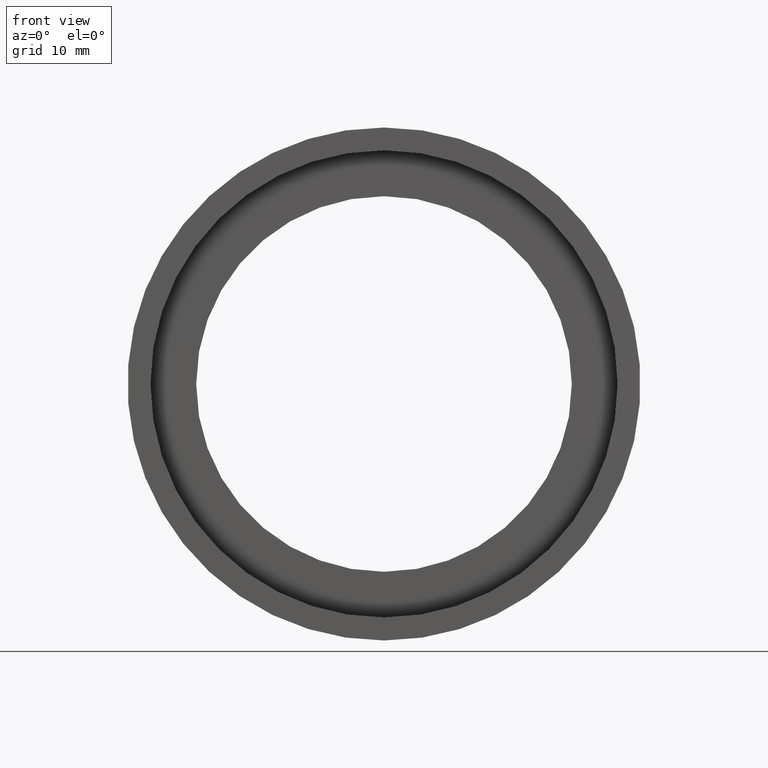
[diagram: clean part render]
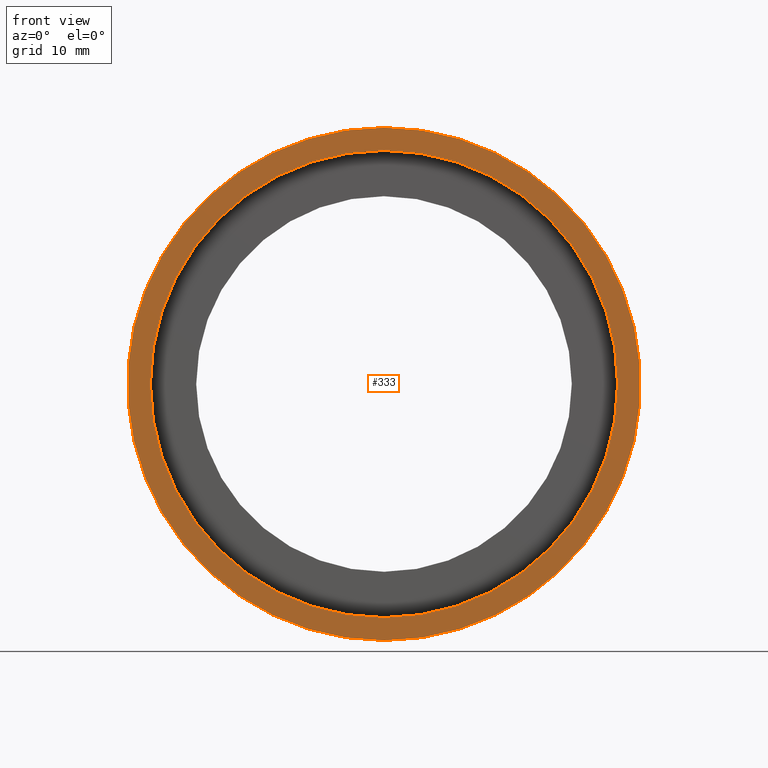
[diagram: same view with one face highlighted and labeled with its STEP entity id]
A machine part, front view. The second image highlights one B-rep face of the part: STEP entity #333.
In plain terms, the highlighted planar face has unit normal (-0, 1, 0).
Its self-contained STEP definition (entity closure, byte-faithful):
#6 = CARTESIAN_POINT ( 'NONE',  ( 0.0000000000000000000, 0.0000000000000000000, 25.50000000000000400 ) ) ;
#8 = EDGE_CURVE ( 'NONE', #245, #71, #25, .T. ) ;
#11 = AXIS2_PLACEMENT_3D ( 'NONE', #252, #101, #279 ) ;
#14 = DIRECTION ( 'NONE',  ( -0.0000000000000000000, 1.000000000000000000, -0.0000000000000000000 ) ) ;
#25 = CIRCLE ( 'NONE', #238, 25.50000000000000400 ) ;
#31 = DIRECTION ( 'NONE',  ( -0.0000000000000000000, 1.000000000000000000, -0.0000000000000000000 ) ) ;
#33 = AXIS2_PLACEMENT_3D ( 'NONE', #102, #403, #316 ) ;
#50 = CARTESIAN_POINT ( 'NONE',  ( 0.0000000000000000000, 0.0000000000000000000, 0.0000000000000000000 ) ) ;
#57 = ORIENTED_EDGE ( 'NONE', *, *, #8, .T. ) ;
#58 = AXIS2_PLACEMENT_3D ( 'NONE', #50, #14, #414 ) ;
#71 = VERTEX_POINT ( 'NONE', #417 ) ;
#75 = ORIENTED_EDGE ( 'NONE', *, *, #104, .T. ) ;
#78 = CIRCLE ( 'NONE', #222, 28.00000000000000700 ) ;
#101 = DIRECTION ( 'NONE',  ( -0.0000000000000000000, 1.000000000000000000, -0.0000000000000000000 ) ) ;
#102 = CARTESIAN_POINT ( 'NONE',  ( 28.00000000000000700, 0.0000000000000000000, 0.0000000000000000000 ) ) ;
#104 = EDGE_CURVE ( 'NONE', #71, #245, #429, .T. ) ;
#139 = CARTESIAN_POINT ( 'NONE',  ( 0.0000000000000000000, 0.0000000000000000000, 28.00000000000000700 ) ) ;
#162 = FACE_OUTER_BOUND ( 'NONE', #264, .T. ) ;
#170 = EDGE_LOOP ( 'NONE', ( #57, #75 ) ) ;
#222 = AXIS2_PLACEMENT_3D ( 'NONE', #253, #31, #246 ) ;
#226 = VERTEX_POINT ( 'NONE', #289 ) ;
#238 = AXIS2_PLACEMENT_3D ( 'NONE', #269, #394, #423 ) ;
#245 = VERTEX_POINT ( 'NONE', #6 ) ;
#246 = DIRECTION ( 'NONE',  ( 0.0000000000000000000, 0.0000000000000000000, 1.000000000000000000 ) ) ;
#252 = CARTESIAN_POINT ( 'NONE',  ( 0.0000000000000000000, 0.0000000000000000000, 0.0000000000000000000 ) ) ;
#253 = CARTESIAN_POINT ( 'NONE',  ( 0.0000000000000000000, 0.0000000000000000000, 0.0000000000000000000 ) ) ;
#264 = EDGE_LOOP ( 'NONE', ( #376, #400 ) ) ;
#269 = CARTESIAN_POINT ( 'NONE',  ( 0.0000000000000000000, 0.0000000000000000000, 0.0000000000000000000 ) ) ;
#279 = DIRECTION ( 'NONE',  ( 0.0000000000000000000, 0.0000000000000000000, 1.000000000000000000 ) ) ;
#289 = CARTESIAN_POINT ( 'NONE',  ( 3.429011037612590100E-015, 0.0000000000000000000, -28.00000000000001100 ) ) ;
#297 = EDGE_CURVE ( 'NONE', #226, #371, #78, .T. ) ;
#316 = DIRECTION ( 'NONE',  ( 0.0000000000000000000, 0.0000000000000000000, 1.000000000000000000 ) ) ;
#333 = ADVANCED_FACE ( 'NONE', ( #162, #420 ), #395, .F. ) ;
#368 = EDGE_CURVE ( 'NONE', #371, #226, #407, .T. ) ;
#371 = VERTEX_POINT ( 'NONE', #139 ) ;
#376 = ORIENTED_EDGE ( 'NONE', *, *, #368, .F. ) ;
#394 = DIRECTION ( 'NONE',  ( -0.0000000000000000000, 1.000000000000000000, -0.0000000000000000000 ) ) ;
#395 = PLANE ( 'NONE',  #33 ) ;
#400 = ORIENTED_EDGE ( 'NONE', *, *, #297, .F. ) ;
#403 = DIRECTION ( 'NONE',  ( -0.0000000000000000000, 1.000000000000000000, 0.0000000000000000000 ) ) ;
#407 = CIRCLE ( 'NONE', #11, 28.00000000000000700 ) ;
#414 = DIRECTION ( 'NONE',  ( 0.0000000000000000000, 0.0000000000000000000, 1.000000000000000000 ) ) ;
#417 = CARTESIAN_POINT ( 'NONE',  ( 3.122849337825751400E-015, 0.0000000000000000000, -25.50000000000000400 ) ) ;
#420 = FACE_BOUND ( 'NONE', #170, .T. ) ;
#423 = DIRECTION ( 'NONE',  ( 0.0000000000000000000, 0.0000000000000000000, 1.000000000000000000 ) ) ;
#429 = CIRCLE ( 'NONE', #58, 25.50000000000000400 ) ;